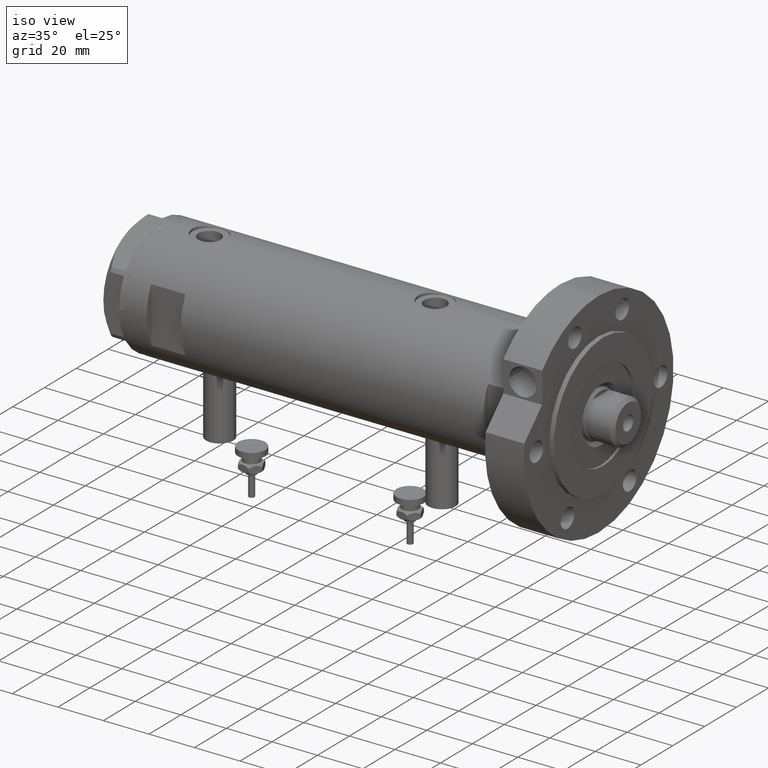
[diagram: clean part render]
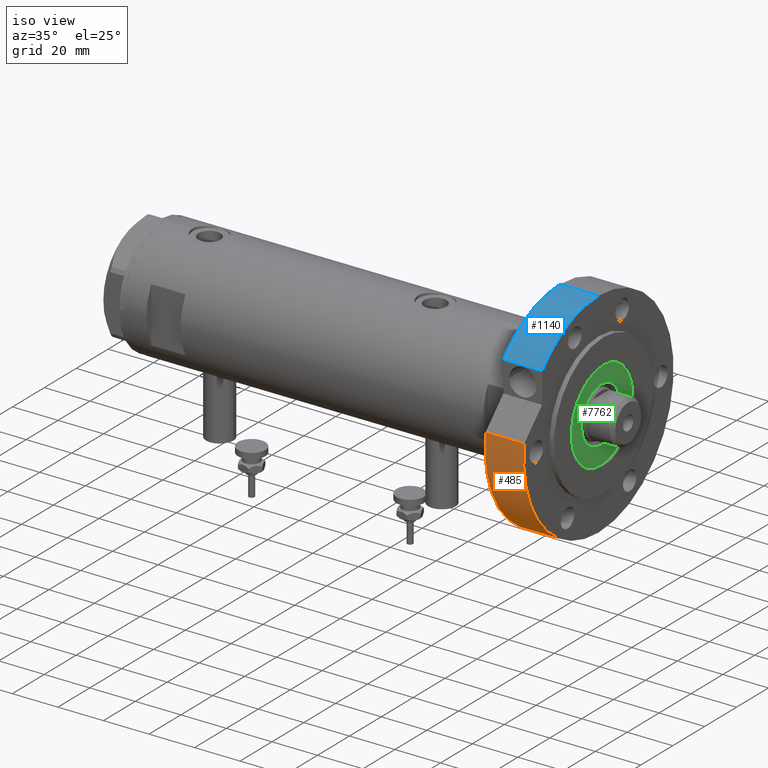
[diagram: same view with three faces highlighted in distinct colors, each labeled with its STEP entity id]
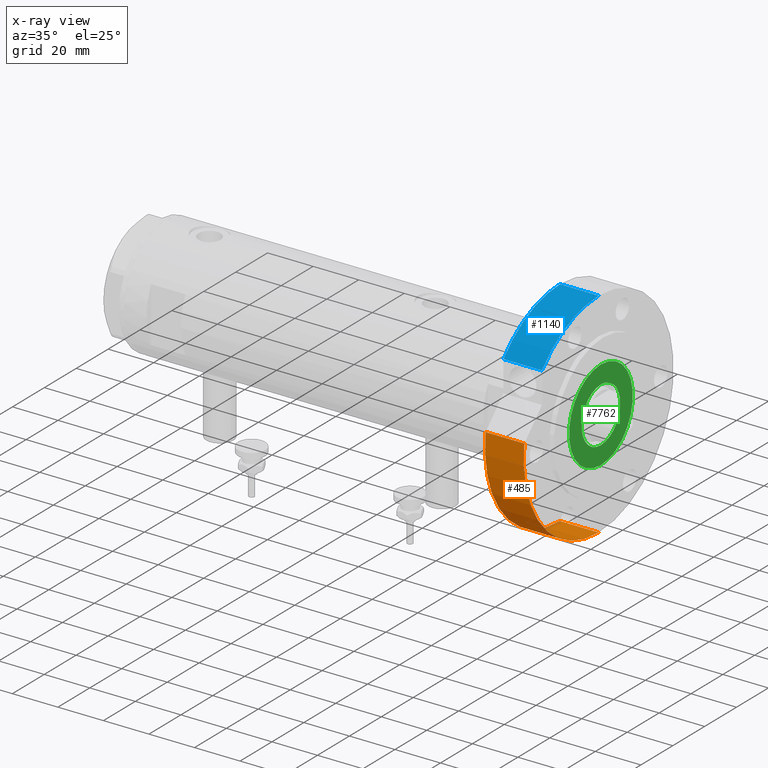
[diagram: x-ray of the same camera — body ghosted, the three highlighted faces saturated]
A machine part, iso view with three faces highlighted in distinct colors.
The next image is the same camera in x-ray (body ghosted, the three faces saturated) — at least one of them is partly hidden behind the body in this view.
Their STEP definitions:

[orange] entity #485 — the highlighted cylindrical surface (partial cylindrical patch) has radius 47 mm, axis along (-1, -0, 0).
#170 = CARTESIAN_POINT ( 'NONE',  ( -46.99999999999999289, 0.000000000000000000, 0.000000000000000000 ) ) ;
#484 = AXIS2_PLACEMENT_3D ( 'NONE', #4397, #5651, #2599 ) ;
#485 = ADVANCED_FACE ( 'NONE', ( #3030 ), #7624, .T. ) ;
#529 = ORIENTED_EDGE ( 'NONE', *, *, #5087, .F. ) ;
#1132 = VERTEX_POINT ( 'NONE', #170 ) ;
#1645 = DIRECTION ( 'NONE',  ( -0.000000000000000000, -0.000000000000000000, 1.000000000000000000 ) ) ;
#2152 = CIRCLE ( 'NONE', #484, 46.99999999999999289 ) ;
#2269 = DIRECTION ( 'NONE',  ( -1.000000000000000000, 0.000000000000000000, 0.000000000000000000 ) ) ;
#2272 = AXIS2_PLACEMENT_3D ( 'NONE', #4721, #5861, #5977 ) ;
#2437 = VECTOR ( 'NONE', #1645, 1000.000000000000000 ) ;
#2599 = DIRECTION ( 'NONE',  ( 1.000000000000000000, 0.000000000000000000, 0.000000000000000000 ) ) ;
#2787 = VERTEX_POINT ( 'NONE', #6228 ) ;
#2838 = EDGE_CURVE ( 'NONE', #2787, #3222, #7761, .T. ) ;
#3030 = FACE_OUTER_BOUND ( 'NONE', #6627, .T. ) ;
#3168 = ORIENTED_EDGE ( 'NONE', *, *, #5011, .F. ) ;
#3222 = VERTEX_POINT ( 'NONE', #7169 ) ;
#3552 = CARTESIAN_POINT ( 'NONE',  ( -46.99999999999999289, 0.000000000000000000, 17.00000000000000000 ) ) ;
#4245 = ORIENTED_EDGE ( 'NONE', *, *, #5404, .T. ) ;
#4397 = CARTESIAN_POINT ( 'NONE',  ( 0.000000000000000000, 0.000000000000000000, 0.000000000000000000 ) ) ;
#4524 = CARTESIAN_POINT ( 'NONE',  ( 6.092310621118299352, 46.60347359688769586, 0.000000000000000000 ) ) ;
#4582 = AXIS2_PLACEMENT_3D ( 'NONE', #5963, #6618, #2269 ) ;
#4721 = CARTESIAN_POINT ( 'NONE',  ( 0.000000000000000000, 0.000000000000000000, 17.00000000000000000 ) ) ;
#5011 = EDGE_CURVE ( 'NONE', #3222, #6215, #5579, .T. ) ;
#5087 = EDGE_CURVE ( 'NONE', #6215, #1132, #5944, .T. ) ;
#5290 = DIRECTION ( 'NONE',  ( -0.000000000000000000, -0.000000000000000000, -1.000000000000000000 ) ) ;
#5404 = EDGE_CURVE ( 'NONE', #2787, #1132, #2152, .T. ) ;
#5579 = CIRCLE ( 'NONE', #2272, 46.99999999999999289 ) ;
#5651 = DIRECTION ( 'NONE',  ( 0.000000000000000000, 0.000000000000000000, 1.000000000000000000 ) ) ;
#5861 = DIRECTION ( 'NONE',  ( 0.000000000000000000, 0.000000000000000000, 1.000000000000000000 ) ) ;
#5944 = LINE ( 'NONE', #3552, #6254 ) ;
#5963 = CARTESIAN_POINT ( 'NONE',  ( 0.000000000000000000, 0.000000000000000000, 17.00000000000000000 ) ) ;
#5977 = DIRECTION ( 'NONE',  ( 1.000000000000000000, 0.000000000000000000, 0.000000000000000000 ) ) ;
#6177 = ORIENTED_EDGE ( 'NONE', *, *, #2838, .F. ) ;
#6215 = VERTEX_POINT ( 'NONE', #6444 ) ;
#6228 = CARTESIAN_POINT ( 'NONE',  ( 6.092310621118299352, 46.60347359688769586, 0.000000000000000000 ) ) ;
#6254 = VECTOR ( 'NONE', #5290, 1000.000000000000000 ) ;
#6444 = CARTESIAN_POINT ( 'NONE',  ( -46.99999999999999289, 0.000000000000000000, 17.00000000000000000 ) ) ;
#6618 = DIRECTION ( 'NONE',  ( -0.000000000000000000, -0.000000000000000000, -1.000000000000000000 ) ) ;
#6627 = EDGE_LOOP ( 'NONE', ( #529, #3168, #6177, #4245 ) ) ;
#7169 = CARTESIAN_POINT ( 'NONE',  ( 6.092310621118299352, 46.60347359688769586, 17.00000000000000000 ) ) ;
#7624 = CYLINDRICAL_SURFACE ( 'NONE', #4582, 46.99999999999999289 ) ;
#7761 = LINE ( 'NONE', #4524, #2437 ) ;

[blue] entity #1140 — the highlighted cylindrical surface (partial cylindrical patch) has radius 47 mm, axis along (-1, -0, 0).
#233 = VERTEX_POINT ( 'NONE', #7347 ) ;
#536 = DIRECTION ( 'NONE',  ( -0.000000000000000000, -0.000000000000000000, -1.000000000000000000 ) ) ;
#704 = CARTESIAN_POINT ( 'NONE',  ( 0.000000000000000000, 0.000000000000000000, 17.00000000000000000 ) ) ;
#868 = AXIS2_PLACEMENT_3D ( 'NONE', #704, #6162, #2455 ) ;
#985 = CARTESIAN_POINT ( 'NONE',  ( 46.99999999999999289, 5.755839955992559063E-15, 0.000000000000000000 ) ) ;
#1041 = CARTESIAN_POINT ( 'NONE',  ( 0.000000000000000000, 0.000000000000000000, 0.000000000000000000 ) ) ;
#1126 = ORIENTED_EDGE ( 'NONE', *, *, #1184, .T. ) ;
#1140 = ADVANCED_FACE ( 'NONE', ( #7598 ), #2605, .T. ) ;
#1157 = AXIS2_PLACEMENT_3D ( 'NONE', #1041, #5350, #2876 ) ;
#1184 = EDGE_CURVE ( 'NONE', #2387, #5037, #7197, .T. ) ;
#1281 = EDGE_CURVE ( 'NONE', #2438, #2387, #1921, .T. ) ;
#1371 = CIRCLE ( 'NONE', #868, 46.99999999999999289 ) ;
#1684 = CARTESIAN_POINT ( 'NONE',  ( 30.83217135699462830, 35.47361286101148892, 0.000000000000000000 ) ) ;
#1921 = CIRCLE ( 'NONE', #1157, 46.99999999999999289 ) ;
#2096 = CARTESIAN_POINT ( 'NONE',  ( 0.000000000000000000, 0.000000000000000000, 17.00000000000000000 ) ) ;
#2387 = VERTEX_POINT ( 'NONE', #6447 ) ;
#2438 = VERTEX_POINT ( 'NONE', #985 ) ;
#2455 = DIRECTION ( 'NONE',  ( 1.000000000000000000, 0.000000000000000000, 0.000000000000000000 ) ) ;
#2605 = CYLINDRICAL_SURFACE ( 'NONE', #4081, 46.99999999999999289 ) ;
#2713 = EDGE_LOOP ( 'NONE', ( #3642, #3004, #6219, #1126 ) ) ;
#2849 = DIRECTION ( 'NONE',  ( -0.000000000000000000, -0.000000000000000000, 1.000000000000000000 ) ) ;
#2876 = DIRECTION ( 'NONE',  ( 1.000000000000000000, 0.000000000000000000, 0.000000000000000000 ) ) ;
#3004 = ORIENTED_EDGE ( 'NONE', *, *, #7315, .T. ) ;
#3642 = ORIENTED_EDGE ( 'NONE', *, *, #6086, .F. ) ;
#4081 = AXIS2_PLACEMENT_3D ( 'NONE', #2096, #5044, #5003 ) ;
#5003 = DIRECTION ( 'NONE',  ( -1.000000000000000000, 0.000000000000000000, 0.000000000000000000 ) ) ;
#5037 = VERTEX_POINT ( 'NONE', #7131 ) ;
#5044 = DIRECTION ( 'NONE',  ( -0.000000000000000000, -0.000000000000000000, -1.000000000000000000 ) ) ;
#5350 = DIRECTION ( 'NONE',  ( 0.000000000000000000, 0.000000000000000000, 1.000000000000000000 ) ) ;
#6027 = CARTESIAN_POINT ( 'NONE',  ( 46.99999999999999289, 5.755839955992559063E-15, 17.00000000000000000 ) ) ;
#6086 = EDGE_CURVE ( 'NONE', #233, #5037, #1371, .T. ) ;
#6162 = DIRECTION ( 'NONE',  ( 0.000000000000000000, 0.000000000000000000, 1.000000000000000000 ) ) ;
#6219 = ORIENTED_EDGE ( 'NONE', *, *, #1281, .T. ) ;
#6284 = VECTOR ( 'NONE', #2849, 1000.000000000000000 ) ;
#6447 = CARTESIAN_POINT ( 'NONE',  ( 30.83217135699462830, 35.47361286101148892, 0.000000000000000000 ) ) ;
#7131 = CARTESIAN_POINT ( 'NONE',  ( 30.83217135699462830, 35.47361286101148892, 17.00000000000000000 ) ) ;
#7197 = LINE ( 'NONE', #1684, #6284 ) ;
#7207 = LINE ( 'NONE', #6027, #7802 ) ;
#7315 = EDGE_CURVE ( 'NONE', #233, #2438, #7207, .T. ) ;
#7347 = CARTESIAN_POINT ( 'NONE',  ( 46.99999999999999289, 5.755839955992559063E-15, 17.00000000000000000 ) ) ;
#7598 = FACE_OUTER_BOUND ( 'NONE', #2713, .T. ) ;
#7802 = VECTOR ( 'NONE', #536, 1000.000000000000000 ) ;

[green] entity #7762 — the highlighted planar face has unit normal (1, 0, -0).
#488 = CARTESIAN_POINT ( 'NONE',  ( -19.99999999999999645, 0.000000000000000000, 33.50000000000000000 ) ) ;
#605 = CARTESIAN_POINT ( 'NONE',  ( -12.05000000000000426, 1.475699392972560823E-15, 33.50000000000000000 ) ) ;
#1001 = EDGE_CURVE ( 'NONE', #1893, #7423, #4714, .T. ) ;
#1260 = CARTESIAN_POINT ( 'NONE',  ( 0.000000000000000000, 0.000000000000000000, 33.50000000000000000 ) ) ;
#1390 = PLANE ( 'NONE',  #3671 ) ;
#1400 = CARTESIAN_POINT ( 'NONE',  ( 0.000000000000000000, 0.000000000000000000, 33.50000000000000000 ) ) ;
#1690 = EDGE_CURVE ( 'NONE', #7423, #1893, #1929, .T. ) ;
#1886 = CARTESIAN_POINT ( 'NONE',  ( 0.000000000000000000, 0.000000000000000000, 33.50000000000000000 ) ) ;
#1893 = VERTEX_POINT ( 'NONE', #2760 ) ;
#1910 = DIRECTION ( 'NONE',  ( 1.000000000000000000, 0.000000000000000000, -0.000000000000000000 ) ) ;
#1929 = CIRCLE ( 'NONE', #2187, 12.05000000000000426 ) ;
#1983 = DIRECTION ( 'NONE',  ( 0.000000000000000000, 0.000000000000000000, 1.000000000000000000 ) ) ;
#2008 = AXIS2_PLACEMENT_3D ( 'NONE', #1260, #1983, #3641 ) ;
#2187 = AXIS2_PLACEMENT_3D ( 'NONE', #1886, #2565, #5570 ) ;
#2504 = CARTESIAN_POINT ( 'NONE',  ( 0.000000000000000000, 0.000000000000000000, 33.50000000000000000 ) ) ;
#2552 = AXIS2_PLACEMENT_3D ( 'NONE', #1400, #4869, #7348 ) ;
#2565 = DIRECTION ( 'NONE',  ( -0.000000000000000000, -0.000000000000000000, -1.000000000000000000 ) ) ;
#2624 = DIRECTION ( 'NONE',  ( 0.000000000000000000, 0.000000000000000000, 1.000000000000000000 ) ) ;
#2756 = DIRECTION ( 'NONE',  ( 0.000000000000000000, 0.000000000000000000, 1.000000000000000000 ) ) ;
#2760 = CARTESIAN_POINT ( 'NONE',  ( 12.05000000000000426, 0.000000000000000000, 33.50000000000000000 ) ) ;
#3577 = DIRECTION ( 'NONE',  ( 1.000000000000000000, 0.000000000000000000, 0.000000000000000000 ) ) ;
#3641 = DIRECTION ( 'NONE',  ( 1.000000000000000000, 0.000000000000000000, 0.000000000000000000 ) ) ;
#3671 = AXIS2_PLACEMENT_3D ( 'NONE', #2504, #2624, #1910 ) ;
#3699 = ORIENTED_EDGE ( 'NONE', *, *, #1690, .T. ) ;
#3961 = ORIENTED_EDGE ( 'NONE', *, *, #4197, .T. ) ;
#4197 = EDGE_CURVE ( 'NONE', #6137, #5028, #7081, .T. ) ;
#4291 = CARTESIAN_POINT ( 'NONE',  ( 19.99999999999999645, 2.449293598294706119E-15, 33.50000000000000000 ) ) ;
#4610 = AXIS2_PLACEMENT_3D ( 'NONE', #6699, #2756, #3577 ) ;
#4714 = CIRCLE ( 'NONE', #2552, 12.05000000000000426 ) ;
#4815 = CIRCLE ( 'NONE', #2008, 19.99999999999999645 ) ;
#4869 = DIRECTION ( 'NONE',  ( -0.000000000000000000, -0.000000000000000000, -1.000000000000000000 ) ) ;
#5028 = VERTEX_POINT ( 'NONE', #488 ) ;
#5067 = FACE_OUTER_BOUND ( 'NONE', #5688, .T. ) ;
#5570 = DIRECTION ( 'NONE',  ( 1.000000000000000000, 0.000000000000000000, 0.000000000000000000 ) ) ;
#5688 = EDGE_LOOP ( 'NONE', ( #7349, #3961 ) ) ;
#6059 = EDGE_CURVE ( 'NONE', #5028, #6137, #4815, .T. ) ;
#6137 = VERTEX_POINT ( 'NONE', #4291 ) ;
#6338 = FACE_BOUND ( 'NONE', #7765, .T. ) ;
#6699 = CARTESIAN_POINT ( 'NONE',  ( 0.000000000000000000, 0.000000000000000000, 33.50000000000000000 ) ) ;
#7081 = CIRCLE ( 'NONE', #4610, 19.99999999999999645 ) ;
#7348 = DIRECTION ( 'NONE',  ( 1.000000000000000000, 0.000000000000000000, 0.000000000000000000 ) ) ;
#7349 = ORIENTED_EDGE ( 'NONE', *, *, #6059, .T. ) ;
#7423 = VERTEX_POINT ( 'NONE', #605 ) ;
#7742 = ORIENTED_EDGE ( 'NONE', *, *, #1001, .T. ) ;
#7762 = ADVANCED_FACE ( 'NONE', ( #6338, #5067 ), #1390, .T. ) ;
#7765 = EDGE_LOOP ( 'NONE', ( #7742, #3699 ) ) ;